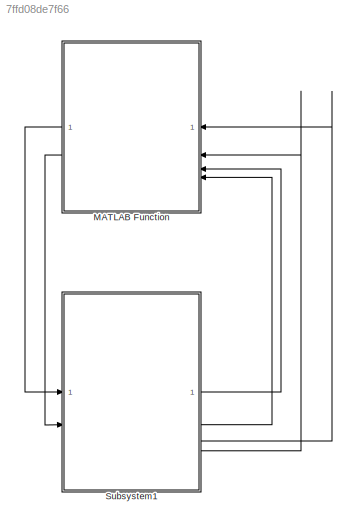
MODEL slx_7ffd08de7f66
KIND model
CONFIG AbsTol = 1e-3
CONFIG EnableMultiTasking = on
CONFIG FixedStep = auto
CONFIG MaxStep = auto
CONFIG MinStep = auto
CONFIG RelTol = 1e-3
CONFIG SampleTimeConstraint = Unconstrained
CONFIG SolverName = VariableStepAuto
CONFIG StartTime = 0.0
CONFIG StopTime = 20
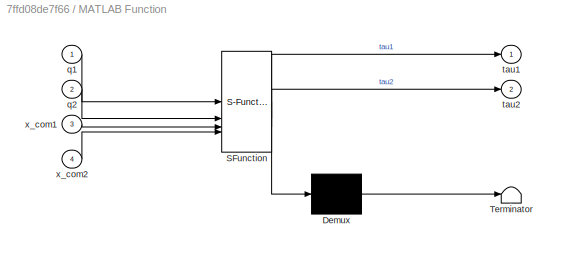
BLOCK [SubSystem] MATLAB Function
  ErrorFcn = Stateflow.Translate.translate
  LibrarySourceBlock = simulink/User-Defined\nFunctions/MATLAB Function
  PermitHierarchicalResolution = ExplicitOnly
  SFBlockType = MATLAB Function
  TreatAsAtomicUnit = on
BLOCK [Demux] MATLAB Function/ Demux 
  Outputs = 1
BLOCK [S-Function] MATLAB Function/ SFunction 
  EnableBusSupport = on
  FunctionName = sf_sfun
  PortCounts = [4 3]
  SFcnIsStateOwnerBlock = off
  SFunctionDeploymentMode = off
  Tag = Stateflow S-Function 2
BLOCK [Terminator] MATLAB Function/ Terminator 
BLOCK [Inport] MATLAB Function/q1
BLOCK [Inport] MATLAB Function/q2
  Port = 2
BLOCK [Outport] MATLAB Function/tau1
BLOCK [Outport] MATLAB Function/tau2
  Port = 2
BLOCK [Inport] MATLAB Function/x_com1
  Port = 3
BLOCK [Inport] MATLAB Function/x_com2
  Port = 4
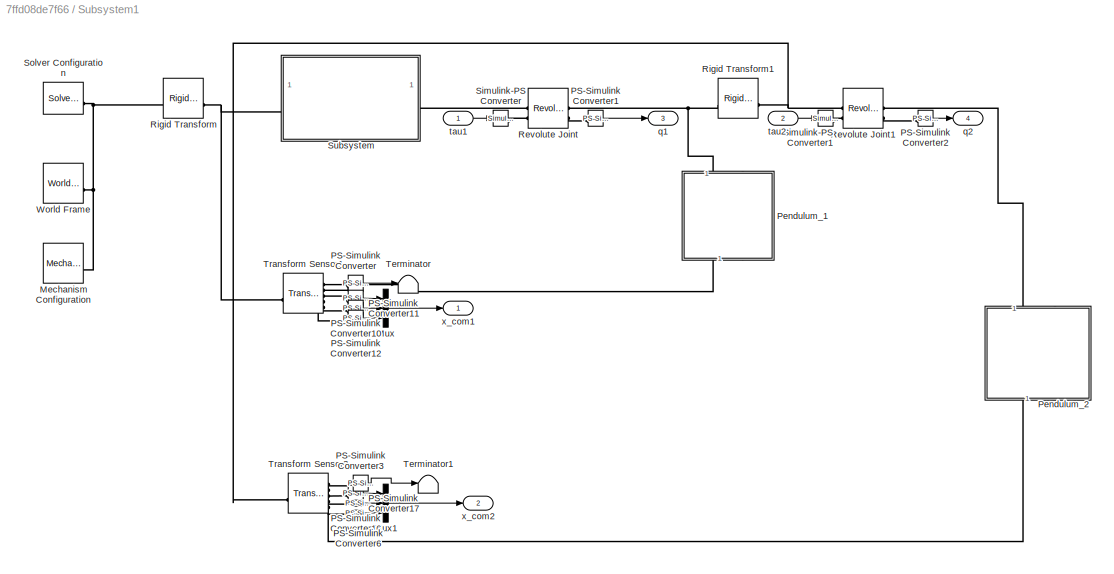
BLOCK [SubSystem] Subsystem1
BLOCK [Reference] Subsystem1/Mechanism Configuration  REF=sm_lib/Utilities/Mechanism
Configuration
  SourceBlock = sm_lib/Utilities/Mechanism\nConfiguration
  SourceType = Mechanism\nConfiguration
BLOCK [Mux] Subsystem1/Mux
  DisplayOption = bar
  Inputs = 3
BLOCK [Mux] Subsystem1/Mux1
  DisplayOption = bar
  Inputs = 3
BLOCK [Reference] Subsystem1/PS-Simulink Converter  REF=nesl_utility/PS-Simulink
Converter
  SourceBlock = nesl_utility/PS-Simulink\nConverter
  SourceType = PS-Simulink\nConverter
BLOCK [Reference] Subsystem1/PS-Simulink Converter1  REF=nesl_utility/PS-Simulink
Converter
  SourceBlock = nesl_utility/PS-Simulink\nConverter
  SourceType = PS-Simulink\nConverter
BLOCK [Reference] Subsystem1/PS-Simulink Converter10  REF=nesl_utility/PS-Simulink
Converter
  SourceBlock = nesl_utility/PS-Simulink\nConverter
  SourceType = PS-Simulink\nConverter
BLOCK [Reference] Subsystem1/PS-Simulink Converter11  REF=nesl_utility/PS-Simulink
Converter
  SourceBlock = nesl_utility/PS-Simulink\nConverter
  SourceType = PS-Simulink\nConverter
BLOCK [Reference] Subsystem1/PS-Simulink Converter12  REF=nesl_utility/PS-Simulink
Converter
  SourceBlock = nesl_utility/PS-Simulink\nConverter
  SourceType = PS-Simulink\nConverter
BLOCK [Reference] Subsystem1/PS-Simulink Converter16  REF=nesl_utility/PS-Simulink
Converter
  SourceBlock = nesl_utility/PS-Simulink\nConverter
  SourceType = PS-Simulink\nConverter
BLOCK [Reference] Subsystem1/PS-Simulink Converter17  REF=nesl_utility/PS-Simulink
Converter
  SourceBlock = nesl_utility/PS-Simulink\nConverter
  SourceType = PS-Simulink\nConverter
BLOCK [Reference] Subsystem1/PS-Simulink Converter2  REF=nesl_utility/PS-Simulink
Converter
  SourceBlock = nesl_utility/PS-Simulink\nConverter
  SourceType = PS-Simulink\nConverter
BLOCK [Reference] Subsystem1/PS-Simulink Converter3  REF=nesl_utility/PS-Simulink
Converter
  SourceBlock = nesl_utility/PS-Simulink\nConverter
  SourceType = PS-Simulink\nConverter
BLOCK [Reference] Subsystem1/PS-Simulink Converter6  REF=nesl_utility/PS-Simulink
Converter
  SourceBlock = nesl_utility/PS-Simulink\nConverter
  SourceType = PS-Simulink\nConverter
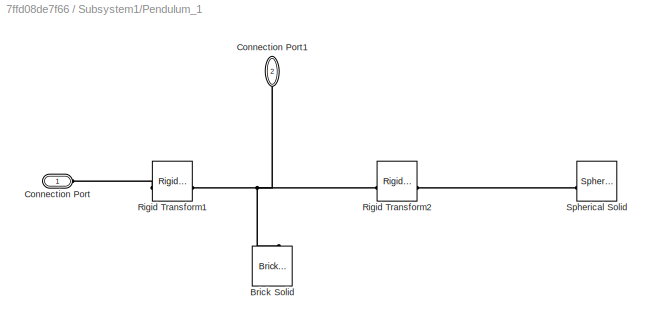
BLOCK [SubSystem] Subsystem1/Pendulum_1
  NameLocation = left
BLOCK [Reference] Subsystem1/Pendulum_1/Brick Solid  REF=sm_lib/Body Elements/Brick Solid
  NameLocation = right
  SourceBlock = sm_lib/Body Elements/Brick Solid
  SourceType = Brick Solid
BLOCK [PMIOPort] Subsystem1/Pendulum_1/Connection Port
  Side = Left
BLOCK [PMIOPort] Subsystem1/Pendulum_1/Connection Port1
  NameLocation = left
  Port = 2
  Side = Right
BLOCK [Reference] Subsystem1/Pendulum_1/Rigid Transform1  REF=sm_lib/Frames and
Transforms/Rigid
Transform
  SourceBlock = sm_lib/Frames and\nTransforms/Rigid\nTransform
  SourceType = Rigid\nTransform
BLOCK [Reference] Subsystem1/Pendulum_1/Rigid Transform2  REF=sm_lib/Frames and
Transforms/Rigid
Transform
  SourceBlock = sm_lib/Frames and\nTransforms/Rigid\nTransform
  SourceType = Rigid\nTransform
BLOCK [Reference] Subsystem1/Pendulum_1/Spherical Solid  REF=sm_lib/Body Elements/Spherical Solid
  SourceBlock = sm_lib/Body Elements/Spherical Solid
  SourceType = Spherical Solid
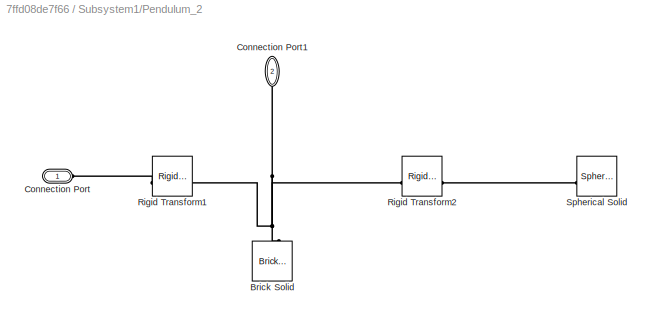
BLOCK [SubSystem] Subsystem1/Pendulum_2
  NameLocation = left
BLOCK [Reference] Subsystem1/Pendulum_2/Brick Solid  REF=sm_lib/Body Elements/Brick Solid
  NameLocation = right
  SourceBlock = sm_lib/Body Elements/Brick Solid
  SourceType = Brick Solid
BLOCK [PMIOPort] Subsystem1/Pendulum_2/Connection Port
  Side = Left
BLOCK [PMIOPort] Subsystem1/Pendulum_2/Connection Port1
  NameLocation = left
  Port = 2
  Side = Right
BLOCK [Reference] Subsystem1/Pendulum_2/Rigid Transform1  REF=sm_lib/Frames and
Transforms/Rigid
Transform
  SourceBlock = sm_lib/Frames and\nTransforms/Rigid\nTransform
  SourceType = Rigid\nTransform
BLOCK [Reference] Subsystem1/Pendulum_2/Rigid Transform2  REF=sm_lib/Frames and
Transforms/Rigid
Transform
  SourceBlock = sm_lib/Frames and\nTransforms/Rigid\nTransform
  SourceType = Rigid\nTransform
BLOCK [Reference] Subsystem1/Pendulum_2/Spherical Solid  REF=sm_lib/Body Elements/Spherical Solid
  SourceBlock = sm_lib/Body Elements/Spherical Solid
  SourceType = Spherical Solid
BLOCK [Reference] Subsystem1/Revolute Joint  REF=sm_lib/Joints/Revolute Joint
  SourceBlock = sm_lib/Joints/Revolute Joint
  SourceType = Revolute Joint
BLOCK [Reference] Subsystem1/Revolute Joint1  REF=sm_lib/Joints/Revolute Joint
  SourceBlock = sm_lib/Joints/Revolute Joint
  SourceType = Revolute Joint
BLOCK [Reference] Subsystem1/Rigid Transform  REF=sm_lib/Frames and
Transforms/Rigid
Transform
  SourceBlock = sm_lib/Frames and\nTransforms/Rigid\nTransform
  SourceType = Rigid\nTransform
BLOCK [Reference] Subsystem1/Rigid Transform1  REF=sm_lib/Frames and
Transforms/Rigid
Transform
  SourceBlock = sm_lib/Frames and\nTransforms/Rigid\nTransform
  SourceType = Rigid\nTransform
BLOCK [Reference] Subsystem1/Simulink-PS Converter  REF=nesl_utility/Simulink-PS
Converter
  SourceBlock = nesl_utility/Simulink-PS\nConverter
  SourceType = Simulink-PS\nConverter
BLOCK [Reference] Subsystem1/Simulink-PS Converter1  REF=nesl_utility/Simulink-PS
Converter
  SourceBlock = nesl_utility/Simulink-PS\nConverter
  SourceType = Simulink-PS\nConverter
BLOCK [Reference] Subsystem1/Solver Configuration  REF=nesl_utility/Solver
Configuration
  SourceBlock = nesl_utility/Solver\nConfiguration
  SourceType = Solver\nConfiguration
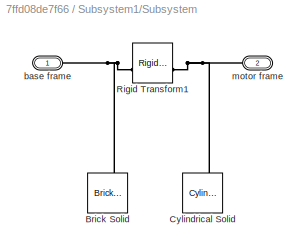
BLOCK [SubSystem] Subsystem1/Subsystem
BLOCK [Reference] Subsystem1/Subsystem/Brick Solid  REF=sm_lib/Body Elements/Brick Solid
  SourceBlock = sm_lib/Body Elements/Brick Solid
  SourceType = Brick Solid
BLOCK [Reference] Subsystem1/Subsystem/Cylindrical Solid  REF=sm_lib/Body Elements/Cylindrical Solid
  NameLocation = right
  SourceBlock = sm_lib/Body Elements/Cylindrical Solid
  SourceType = Cylindrical Solid
BLOCK [Reference] Subsystem1/Subsystem/Rigid Transform1  REF=sm_lib/Frames and
Transforms/Rigid
Transform
  SourceBlock = sm_lib/Frames and\nTransforms/Rigid\nTransform
  SourceType = Rigid\nTransform
BLOCK [PMIOPort] Subsystem1/Subsystem/base frame
  Side = Left
BLOCK [PMIOPort] Subsystem1/Subsystem/motor frame
  Port = 2
  Side = Right
BLOCK [Terminator] Subsystem1/Terminator
BLOCK [Terminator] Subsystem1/Terminator1
BLOCK [Reference] Subsystem1/Transform Sensor1  REF=sm_lib/Frames and
Transforms/Transform
Sensor
  SourceBlock = sm_lib/Frames and\nTransforms/Transform\nSensor
  SourceType = Transform\nSensor
BLOCK [Reference] Subsystem1/Transform Sensor3  REF=sm_lib/Frames and
Transforms/Transform
Sensor
  SourceBlock = sm_lib/Frames and\nTransforms/Transform\nSensor
  SourceType = Transform\nSensor
BLOCK [Reference] Subsystem1/World Frame  REF=sm_lib/Frames and
Transforms/World Frame
  SourceBlock = sm_lib/Frames and\nTransforms/World Frame
  SourceType = World Frame
BLOCK [Outport] Subsystem1/q1
  Port = 3
BLOCK [Outport] Subsystem1/q2
  Port = 4
BLOCK [Inport] Subsystem1/tau1
BLOCK [Inport] Subsystem1/tau2
  Port = 2
BLOCK [Outport] Subsystem1/x_com1
BLOCK [Outport] Subsystem1/x_com2
  Port = 2
LINE MATLAB Function:1 -> Subsystem1:1
LINE MATLAB Function:2 -> Subsystem1:2
LINE Subsystem1/Mux1:1 -> Subsystem1/x_com2:1
LINE Subsystem1/Mux:1 -> Subsystem1/x_com1:1
LINE Subsystem1/PS-Simulink Converter10:1 -> Subsystem1/Mux:1
LINE Subsystem1/PS-Simulink Converter11:1 -> Subsystem1/Mux:2
LINE Subsystem1/PS-Simulink Converter12:1 -> Subsystem1/Mux:3
LINE Subsystem1/PS-Simulink Converter16:1 -> Subsystem1/Mux1:1
LINE Subsystem1/PS-Simulink Converter17:1 -> Subsystem1/Mux1:2
LINE Subsystem1/PS-Simulink Converter1:1 -> Subsystem1/q1:1
LINE Subsystem1/PS-Simulink Converter2:1 -> Subsystem1/q2:1
LINE Subsystem1/PS-Simulink Converter3:1 -> Subsystem1/Terminator1:1
LINE Subsystem1/PS-Simulink Converter6:1 -> Subsystem1/Mux1:3
LINE Subsystem1/PS-Simulink Converter:1 -> Subsystem1/Terminator:1
LINE Subsystem1/tau1:1 -> Subsystem1/Simulink-PS Converter:1
LINE Subsystem1/tau2:1 -> Subsystem1/Simulink-PS Converter1:1
LINE Subsystem1:1 -> MATLAB Function:3
LINE Subsystem1:2 -> MATLAB Function:4
LINE Subsystem1:3 -> MATLAB Function:1
LINE Subsystem1:4 -> MATLAB Function:2
PNET net1: Subsystem1/Mechanism Configuration:RConn1 -- Subsystem1/Rigid Transform:LConn1 -- Subsystem1/Solver Configuration:RConn1 -- Subsystem1/World Frame:RConn1
PLINE Subsystem1/PS-Simulink Converter10:LConn1 -- Subsystem1/Transform Sensor1:RConn3
PLINE Subsystem1/PS-Simulink Converter11:LConn1 -- Subsystem1/Transform Sensor1:RConn4
PLINE Subsystem1/PS-Simulink Converter12:LConn1 -- Subsystem1/Transform Sensor1:RConn5
PLINE Subsystem1/PS-Simulink Converter16:LConn1 -- Subsystem1/Transform Sensor3:RConn3
PLINE Subsystem1/PS-Simulink Converter17:LConn1 -- Subsystem1/Transform Sensor3:RConn4
PLINE Subsystem1/PS-Simulink Converter1:LConn1 -- Subsystem1/Revolute Joint:RConn2
PLINE Subsystem1/PS-Simulink Converter2:LConn1 -- Subsystem1/Revolute Joint1:RConn2
PLINE Subsystem1/PS-Simulink Converter3:LConn1 -- Subsystem1/Transform Sensor3:RConn2
PLINE Subsystem1/PS-Simulink Converter6:LConn1 -- Subsystem1/Transform Sensor3:RConn5
PLINE Subsystem1/PS-Simulink Converter:LConn1 -- Subsystem1/Transform Sensor1:RConn2
PNET net2: Subsystem1/Pendulum_1/Brick Solid:RConn1 -- Subsystem1/Pendulum_1/Connection Port1:RConn1 -- Subsystem1/Pendulum_1/Rigid Transform1:LConn1 -- Subsystem1/Pendulum_1/Rigid Transform2:LConn1
PLINE Subsystem1/Pendulum_1/Connection Port:RConn1 -- Subsystem1/Pendulum_1/Rigid Transform1:RConn1
PLINE Subsystem1/Pendulum_1/Rigid Transform2:RConn1 -- Subsystem1/Pendulum_1/Spherical Solid:RConn1
PNET net3: Subsystem1/Pendulum_1:LConn1 -- Subsystem1/Revolute Joint:RConn1 -- Subsystem1/Rigid Transform1:LConn1
PLINE Subsystem1/Pendulum_1:RConn1 -- Subsystem1/Transform Sensor1:RConn1
PNET net4: Subsystem1/Pendulum_2/Brick Solid:RConn1 -- Subsystem1/Pendulum_2/Connection Port1:RConn1 -- Subsystem1/Pendulum_2/Rigid Transform1:LConn1 -- Subsystem1/Pendulum_2/Rigid Transform2:LConn1
PLINE Subsystem1/Pendulum_2/Connection Port:RConn1 -- Subsystem1/Pendulum_2/Rigid Transform1:RConn1
PLINE Subsystem1/Pendulum_2/Rigid Transform2:RConn1 -- Subsystem1/Pendulum_2/Spherical Solid:RConn1
PLINE Subsystem1/Pendulum_2:LConn1 -- Subsystem1/Revolute Joint1:RConn1
PLINE Subsystem1/Pendulum_2:RConn1 -- Subsystem1/Transform Sensor3:RConn1
PNET net5: Subsystem1/Revolute Joint1:LConn1 -- Subsystem1/Rigid Transform1:RConn1 -- Subsystem1/Transform Sensor3:LConn1
PLINE Subsystem1/Revolute Joint1:LConn2 -- Subsystem1/Simulink-PS Converter1:RConn1
PLINE Subsystem1/Revolute Joint:LConn1 -- Subsystem1/Subsystem:RConn1
PLINE Subsystem1/Revolute Joint:LConn2 -- Subsystem1/Simulink-PS Converter:RConn1
PNET net6: Subsystem1/Rigid Transform:RConn1 -- Subsystem1/Subsystem:LConn1 -- Subsystem1/Transform Sensor1:LConn1
PNET net7: Subsystem1/Subsystem/Brick Solid:RConn1 -- Subsystem1/Subsystem/Rigid Transform1:LConn1 -- Subsystem1/Subsystem/base frame:RConn1
PNET net8: Subsystem1/Subsystem/Cylindrical Solid:RConn1 -- Subsystem1/Subsystem/Rigid Transform1:RConn1 -- Subsystem1/Subsystem/motor frame:RConn1
note: PNET lines group multi-terminal physical nets as a canonical sorted terminal list (undirected conserving connections); 2-terminal nets keep the pairwise PLINE form
CHART MATLAB Function states=1 transitions=1
  STATE_LABEL 'eML_blk_kernel()'
  STATE_LABEL 'SCRIPT:\nfunction [tau1,tau2]= fcn(q1, q2, x_com1,x_com2)\n\nd_q1 = 0;\ndd_q1 = 0;\n\nd_q2 = 0;\ndd_q2 = 0;\n\nL1 = 1; % lenght link1\nL2 = 10; % lenght link2\n\nm1 = 1; % mass of the link 1\nm2 = 10; % mass of the link 2\nm3 = 0; % mass of the shere 1\nm4 = 0; % mass of the shere 1\n\ng = [0; 0; -9.81;];\n\nP_1_0 = [0; 0; 0.1];\nP_2_1 = [0; -L1; 0];\nP_3_2 = [L2; 0; 0];\n\nR_0_1 = [cos(q1), -sin(q1), 0;\n         sin(q1...<+2037ch>'
CHART  states=0 transitions=0
